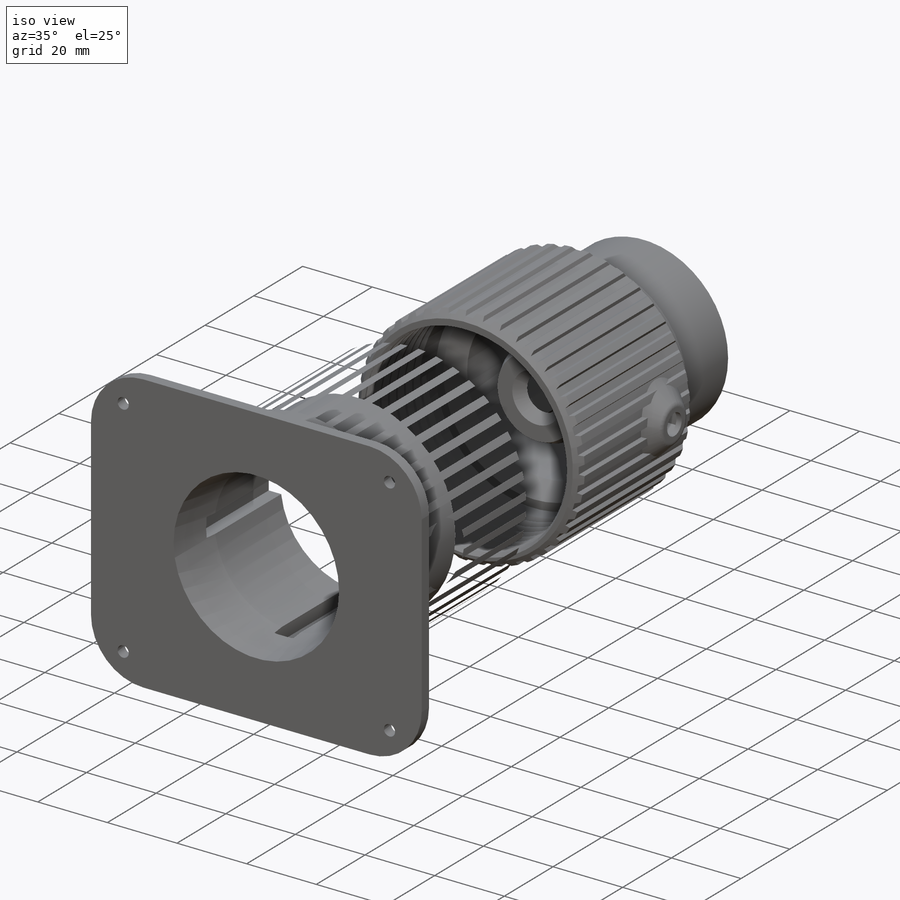
[diagram: iso view]
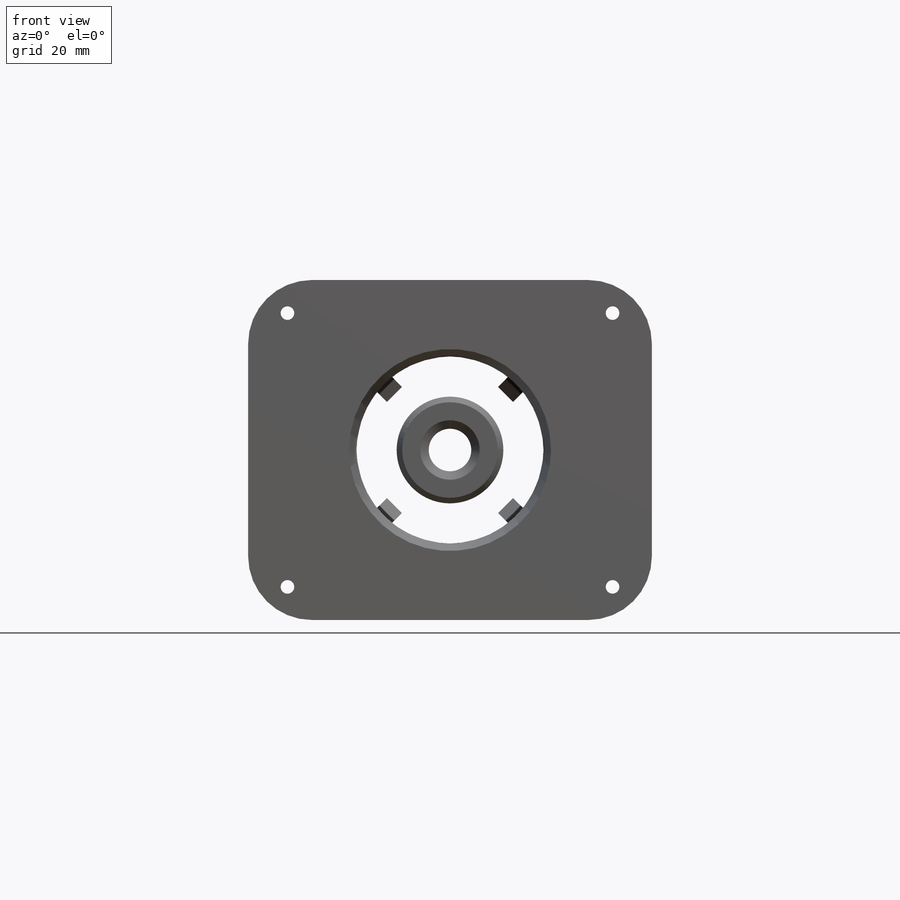
[diagram: front view]
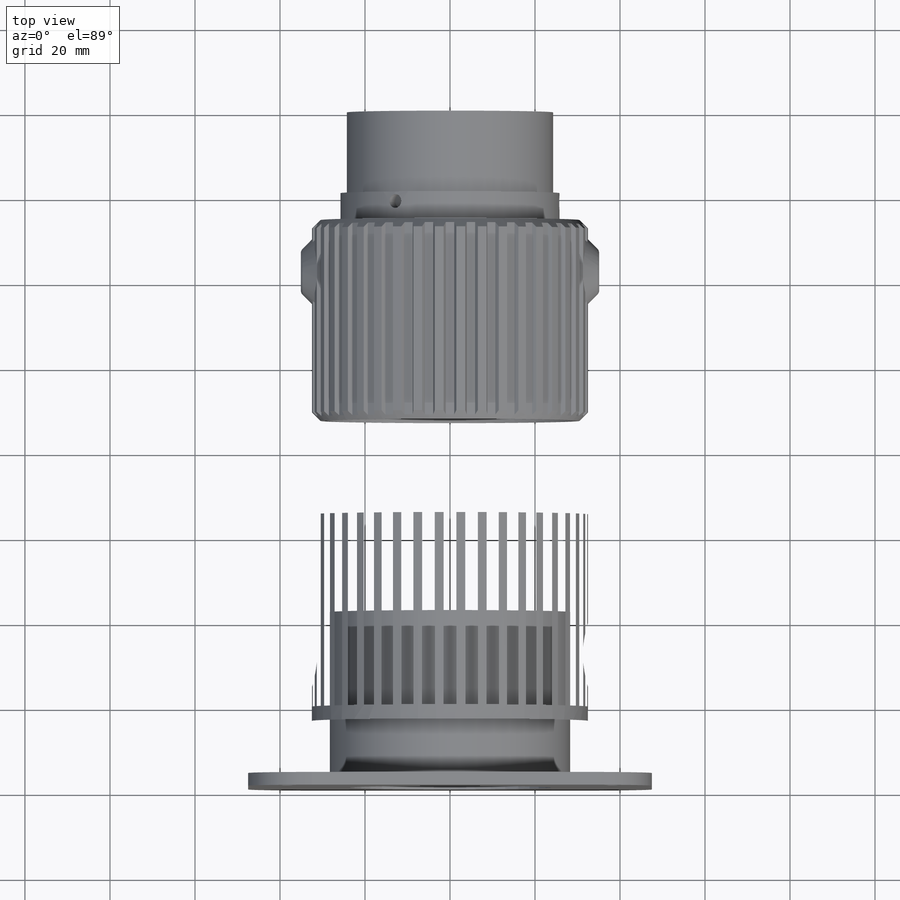
[diagram: top view]
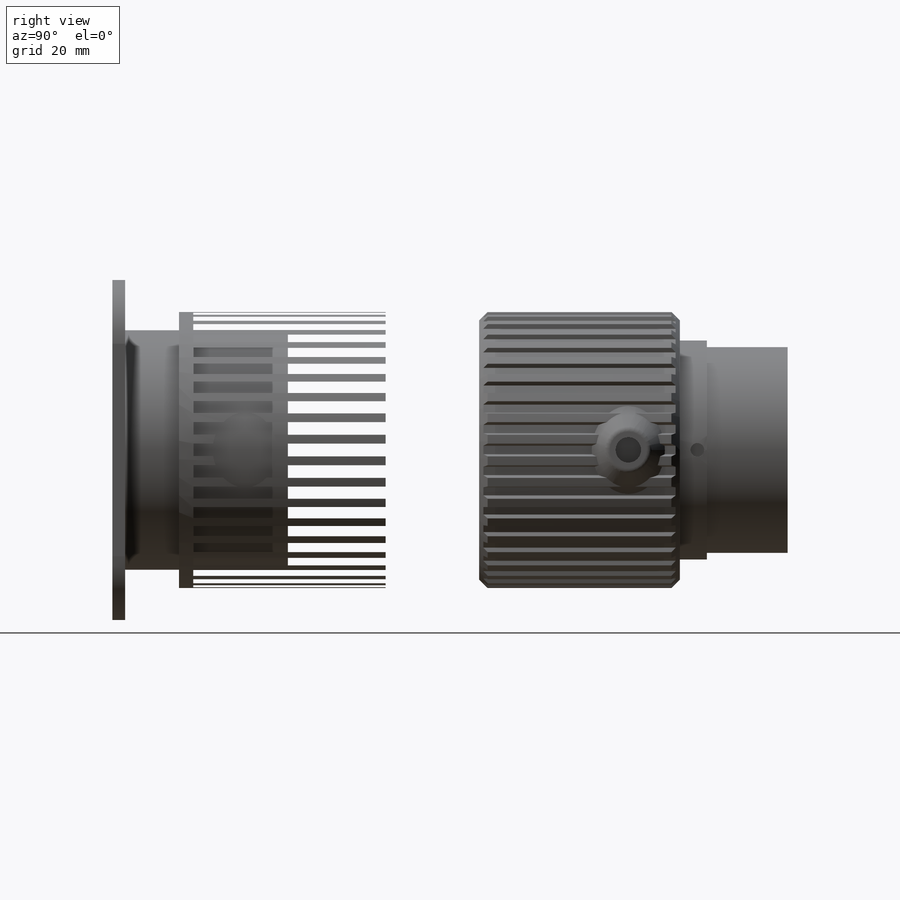
[diagram: right view]
SOLIDWORKS PART (.sldprt)
format: sldprt  version: not decoded by parser v0  size: 4,010,496 bytes
history: native  units: mm
features: sketch x44, cut_extrude x14, revolve x12, extrude x8, pattern_circular x7, cut_revolve x5, plane x4, fillet x3, mirror x3, boolean_combine x2, helix x2, sweep x2, material x1 (+19 scaffold rows collapsed; 11 parser-record rows omitted)
feature tree (137):
  scaffold x19  (default folders/planes/origin — collapsed)
  material  "PET"
  plane  "Přední rovina"
  plane  "Horní rovina"
  plane  "Pravá rovina"
  sketch  "Skica3"  dims[c1.D1=44.0mm c1.D2=48.5mm c1.D3=25.0mm c1.D4=51.5mm c1.D5=60.0mm c1.D6=19.0mm c1.D7=4.5mm c1.D8=~21.194592mm c2.D8=12.0deg c2.D9=55.0mm c2.D7=4.5mm c2.D10=45.0mm c3.D7=2.25mm c3.D8=8.0mm c4.D8=45.0deg c4.D9=4.0mm]
  revolve  "Rotovat1"  Angle=360deg
  sketch  "Skica4"  dims[D2=3.2mm D1=21.25mm]
  cut_extrude  "Odebrat vysunutím1"  Depth=23mm
  pattern_circular  "Kruhové pole1"  Count=3 Angle=120deg
  parser-record x11  (decoder bookkeeping rows leaked as tree rows — omitted from the tree; the rows remain in map.json)
  sketch  "Skica1"  dims[c1.D2=24.28mm c1.D8=52.0mm c1.D1=12.8mm c1.D3=10.0mm c1.D4=3.741mm c2.D4=30.0deg c3.D4=~2.988596mm c4.D4=45.0deg c4.D5=2.0mm c4.D6=10.0mm c4.D7=~5.807943mm c4.D8=2.5mm c4.D9=1.5mm c5.D5=2.0mm c5.D10=100.0mm c5.D11=4.3mm c5.D9=5.0mm c6.D5=1.5mm c6.D10=100.0mm c6.D12=10.0mm c6.D13=2.0mm c6.D14=2.0mm c7.D10=20.0mm c7.D12=~60.562862mm c8.D12=45.0deg c8.D15=10.0mm c8.D16=2.5mm c9.D15=10.0mm]
  revolve  "Rotovat2"  Angle=360deg
  sketch  "Skica5"  dims[c1.D1=~3.387456mm c2.D1=45.0deg c2.D2=~5.11235mm c3.D2=80.0deg c3.D4=4.0mm c3.D5=1.5mm c3.D6=~70.819371mm c4.D6=10.0deg c4.D7=2.5mm c4.D8=10.0mm c4.D9=~6.353814mm c4.D3=6.0 c5.D6=24.0]
  revolve  "Rotovat3"  Angle=360deg
  sketch  "Skica14"
  revolve  "smoothing inside"  Angle=360deg
  sketch  "Skica6"  dims[c1.D1=6.0mm c1.D2=3.2mm c1.D3=5.5mm c1.D4=3.0mm c1.D5=4.0mm c1.D6=2.0mm c1.D7=15.0mm c1.D8=2.0mm c2.D7=24.0mm]
  sketch  "Skica8"
  cut_extrude  "Odebrat vysunutím2"  [1 undecoded]
  sketch  "Skica9"
  cut_extrude  "Odebrat vysunutím3"  [1 undecoded]
  sketch  "Skica10"  dims[D1=~9.643044mm]
  cut_extrude  "Odebrat vysunutím4"  [1 undecoded]
  sketch  "Skica11"
  cut_extrude  "Odebrat vysunutím5"  [1 undecoded]
  sketch  "Skica12"  dims[D1=1.5mm]
  revolve  "Rotovat4"  Angle=360deg
  pattern_circular  "Kruhové pole7"  Count=4 Angle=360deg
  sketch  "Skica7"  dims[c1.D1=1.0mm c1.D2=0.2mm c1.D3=2.0mm c1.D4=~1.982249mm c2.D4=65.0deg c2.D5=~2.593876mm c2.D2=~0.193185mm c2.D3=3.0mm c2.D6=~0.345356mm c2.D7=9.0mm c2.D8=~0.59494mm c2.D9=~0.530891mm c2.D10=~3.477639mm c3.D10=120.0deg c3.D11=~0.481664mm c3.D8=1.0mm c4.D11=1.5mm]
  cut_revolve  "central-tube-separation"  Angle=360deg
  sketch  "Skica15"
  revolve  "Rotovat7"  Angle=360deg
  sketch  "Skica16"  dims[c1.D4=3.2mm c1.D1=3.5mm c1.D2=5.4mm c1.D3=~44.299159mm c2.D3=45.0deg c2.D4=~11.667262mm]
  cut_extrude  "Odebrat vysunutím6"  Depth=25.5mm
  sketch  "Skica17"  dims[c1.D1=~2.616649mm c2.D1=45.0deg c2.D2=2.0mm c3.D1=~1.117574mm c4.D1=45.0deg]
  cut_extrude  "Odebrat vysunutím8"  [1 undecoded]
  sketch  "Skica20"  dims[D1=0.0mm]
  cut_extrude  "Odebrat vysunutím9"  [1 undecoded]
  pattern_circular  "Kruhové pole9"  Count=4 Angle=90deg
  sketch  "Skica18"  dims[D2=1.0mm D1=0.2mm]
  extrude  "Přidat vysunutím4"  Depth=25mm
  sketch  "Skica19"  dims[c1.D1=~5.60501mm c2.D1=45.0deg c3.D1=~7.177742mm c4.D1=45.0deg c4.D2=1.0mm]
  extrude  "Přidat vysunutím7"  [1 undecoded]
  pattern_circular  "Kruhové pole21"  Count=4 Angle=90deg
  boolean_combine  "Kombinovat1"
  sketch  "Skica21"  dims[c1.D1=1.5mm c1.D2=2.0mm c1.D3=1.75mm c1.D4=10.0mm c1.D5=20.0mm c1.D6=9.75mm c2.D4=25.0mm c2.D6=~1.822345mm c3.D6=45.0deg c3.D7=1.5mm c3.D8=10.0mm c3.D1=~1.876467mm c4.D1=45.0deg c4.D2=15.0mm c4.D4=1.75mm c4.D5=2.0mm c5.D1=5.0mm]
  cut_revolve  "top-focusing-riing-seat"  Angle=360deg
  sketch  "Skica22"  dims[c1.D1=~1.624299mm c1.D2=~1.494033mm c1.D3=~0.680535mm c1.D4=~0.283691mm c1.D5=3.5mm c1.D6=25.0mm c2.D5=65.0mm c2.D7=2.0mm c2.D8=45.0deg c2.D9=2.0mm c2.D10=45.0deg c2.D2=25.0mm]
  revolve  "top-focusing-ring"  Angle=360deg
  sketch  "Skica25"  dims[c1.D1=~47.952621mm c1.D2=25.0mm c2.D1=35.0mm]
  cut_revolve  "Odebrat rotací7"  Angle=360deg
  sketch  "Skica28"  dims[D1=2.0mm D2=30.0mm]
  revolve  "Rotovat9"  Angle=360deg
  sketch  "Skica27"  dims[c1.D1=3.1mm c1.D2=0.3mm c1.D3=15.0mm c1.D4=8.0mm c1.D16=5.0mm c1.D8=5.0mm c2.D2=0.3mm c2.D3=10.0mm c2.D4=3.0mm c2.D5=10.0mm c2.D6=5.0mm c2.D7=80.0mm c2.D9=~18.567007mm c3.D4=3.0mm c3.D10=3.0mm c3.D11=3.0mm c3.D12=20.0mm c3.D13=1.0mm c3.D7=80.0mm c4.D11=3.0mm c4.D14=0.5mm c4.D15=4.75mm c5.D14=0.5mm c5.D8=~7.003267mm c5.D9=3.0mm c5.D13=3.0mm c5.D16=0.1mm]
  revolve  "Rotovat10"  Angle=360deg
  sketch  "Skica32"  dims[c1.D3=80.0mm c1.D1=95.0mm c1.D2=80.0mm c2.D3=3.0mm]
  extrude  "Přidat vysunutím9"  [1 undecoded]
  fillet  "Zaoblit1"  Radius=15mm
  sketch  "Skica31"  dims[D1=~0.711668mm D2=35.0mm]
  cut_revolve  "Odebrat rotací8"  Angle=360deg
  sketch  "Skica36"  dims[D1=6.0mm D2=100.0mm D3=6.0mm]
  cut_extrude  "Odebrat vysunutím14"  Depth=3mm
  sketch  "Skica49"  dims[D1=3.2mm]
  cut_extrude  "Odebrat vysunutím17"  [1 undecoded]
  sketch  "Skica29"  dims[D1=5.0mm D2=3.5mm]
  extrude  "Přidat vysunutím8"  [1 undecoded]
  pattern_circular  "Kruhové pole23"  Count=4 Angle=90deg
  sketch  "Skica35"  dims[c1.D1=0.2mm c1.D2=0.2mm c1.D3=0.5mm c2.D1=0.2mm c2.D2=0.2mm c3.D1=~3.460248mm c3.D2=~1.81745mm c3.D3=~1.387995mm]
  extrude  "Přidat vysunutím11"  Depth=10mm
  pattern_circular  "Kruhové pole35"  Count=4 Angle=90deg
  boolean_combine  "Kombinovat2"
  sketch  "Skica30"  dims[D1=20.0mm D2=0.35mm D3=~0.108156mm D4=~0.901052mm D5=0.2mm D6=~1.091426mm D7=45.25mm D8=40.25mm]
  revolve  "bottom-focusing-ring"  Angle=360deg
  sketch  "Skica37"  dims[c1.D1=32.5mm c1.D3=30.9924mm c2.D1=2.0mm c2.D2=3.0mm c2.D3=1.0mm c3.D1=2.0mm]
  cut_extrude  "Odebrat vysunutím13"  [1 undecoded]
  pattern_circular  "Kruhové pole36"  Count=40 Angle=9deg
  sketch  "Skica38"  dims[c1.D1=~1.198433mm c2.D1=45.0deg c2.D2=~1.198433mm c3.D2=45.0deg c3.D3=0.6mm c3.D4=3.4mm c3.D5=10.0mm c4.D4=3.3mm c4.D6=2.7mm]
  plane  "Rovina1"
  sketch  "Skica40"
  helix  "Šroubovice/spirála1"  Pitch=65mm
  sweep  "Táhnout po křivce1"
  sketch  "Skica41"  dims[D1=15.0mm D2=10.0mm]
  cut_revolve  "Odebrat rotací10"  Angle=360deg
  sketch  "Skica42"
  sketch  "Skica43"
  helix  "Šroubovice/spirála2"  Pitch=70mm
  sweep  "Odebrat tažením po křivce1"
  sketch  "Skica44"  dims[c1.D1=12.0mm c1.D2=7.5mm c2.D1=~8.165106mm c3.D1=45.0deg c3.D2=10.0mm c3.D3=6.5mm c3.D4=1.0mm]
  revolve  "Rotovat12"  Angle=360deg
  fillet  "Zaoblit2"  Radius=1.5mm
  sketch  "Skica45"
  revolve  "Rotovat13"  Angle=360deg
  fillet  "Zaoblit3"  Radius=1.5mm
  mirror  "Zrcadlit7"
  mirror  "Zrcadlit8"
  sketch  "Skica46"  dims[D1=8.2mm]
  cut_extrude  "Odebrat vysunutím15"  Depth=1.5mm
  sketch  "Skica47"  dims[D1=6.0mm]
  cut_extrude  "Odebrat vysunutím16"  [1 undecoded]
  sketch  "Skica48"
  extrude  "Přidat vysunutím12"  Depth=0.15mm
  sketch  "Skica50"
  extrude  "Přidat vysunutím13"  Depth=0.15mm
  sketch  "Skica51"
  extrude  "Přidat vysunutím14"  Depth=0.15mm
  sketch  "Skica52"  dims[D1=0.5mm D2=0.5mm]
  cut_extrude  "Odebrat vysunutím18"  [1 undecoded]
  mirror  "Zrcadlit9"
decode coverage: 70 of 102 modeling features carry decoded parameters
note: ~ marks probable driven/reference dimensions
note: 13 parameter values undecoded
summary: no parameter record found for 13 features
note: suppression state not decoded; provenance and decode notes live in map.json
